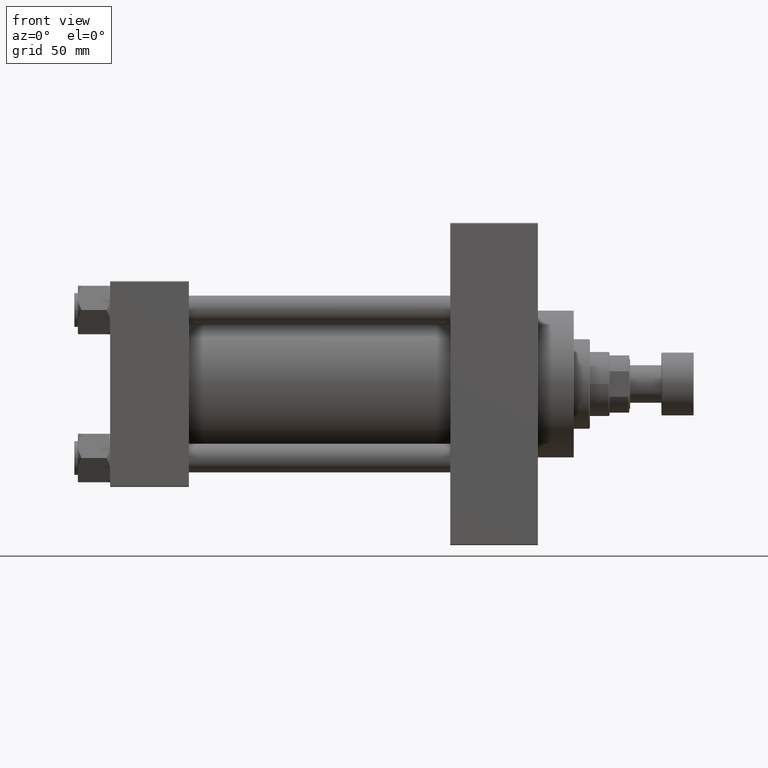
[diagram: clean part render]
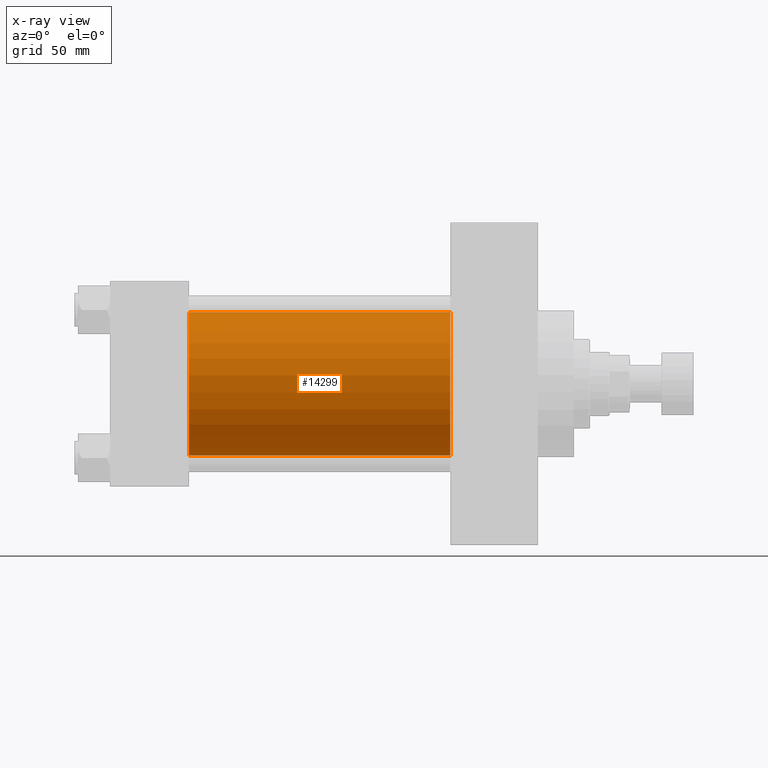
[diagram: x-ray — body ghosted, one internal face saturated and labeled with its STEP entity id]
A machine part, front view, then the same camera in x-ray: the body is ghosted and one INTERNAL B-rep face — a face not visible from any outside direction — is saturated and labeled: STEP entity #14299.
In plain terms, the highlighted cylindrical surface (partial cylindrical patch) has radius 40 mm, axis along (-1, -0, -0).
Its self-contained STEP definition (entity closure, byte-faithful):
#1648 = VERTEX_POINT ( 'NONE', #43539 ) ;
#1731 = VECTOR ( 'NONE', #27690, 1000.000000000000000 ) ;
#1929 = CARTESIAN_POINT ( 'NONE',  ( 44.00000000000000000, -2.602085213965210642E-15, 40.00000000000000000 ) ) ;
#2378 = DIRECTION ( 'NONE',  ( 0.000000000000000000, 0.000000000000000000, -1.000000000000000000 ) ) ;
#3303 = CARTESIAN_POINT ( 'NONE',  ( 190.0000000000000000, -2.602085213965210642E-15, 40.00000000000000000 ) ) ;
#6787 = AXIS2_PLACEMENT_3D ( 'NONE', #32576, #48092, #48344 ) ;
#7384 = ORIENTED_EDGE ( 'NONE', *, *, #15392, .T. ) ;
#9329 = CARTESIAN_POINT ( 'NONE',  ( 190.0000000000000000, 2.296501982624201990E-15, -40.00000000000000000 ) ) ;
#13264 = DIRECTION ( 'NONE',  ( 0.000000000000000000, 0.000000000000000000, 1.000000000000000000 ) ) ;
#13697 = ORIENTED_EDGE ( 'NONE', *, *, #34579, .T. ) ;
#13760 = CARTESIAN_POINT ( 'NONE',  ( 190.0000000000000000, -2.602085213965210642E-15, 0.000000000000000000 ) ) ;
#14299 = ADVANCED_FACE ( 'NONE', ( #40752 ), #36194, .F. ) ;
#15302 = EDGE_LOOP ( 'NONE', ( #7384, #13697, #38030, #24766 ) ) ;
#15392 = EDGE_CURVE ( 'NONE', #1648, #39754, #23055, .T. ) ;
#17072 = EDGE_CURVE ( 'NONE', #31358, #32282, #36036, .T. ) ;
#19834 = AXIS2_PLACEMENT_3D ( 'NONE', #29813, #30298, #2378 ) ;
#20283 = DIRECTION ( 'NONE',  ( -1.000000000000000000, -0.000000000000000000, -0.000000000000000000 ) ) ;
#21803 = CARTESIAN_POINT ( 'NONE',  ( 44.00000000000000000, 2.296501982624201990E-15, -40.00000000000000000 ) ) ;
#23055 = CIRCLE ( 'NONE', #19834, 40.00000000000000000 ) ;
#24766 = ORIENTED_EDGE ( 'NONE', *, *, #38091, .F. ) ;
#27181 = LINE ( 'NONE', #3303, #1731 ) ;
#27690 = DIRECTION ( 'NONE',  ( -1.000000000000000000, -0.000000000000000000, -0.000000000000000000 ) ) ;
#29813 = CARTESIAN_POINT ( 'NONE',  ( 190.0000000000000000, -2.602085213965210642E-15, 0.000000000000000000 ) ) ;
#30298 = DIRECTION ( 'NONE',  ( 1.000000000000000000, 0.000000000000000000, 0.000000000000000000 ) ) ;
#31358 = VERTEX_POINT ( 'NONE', #1929 ) ;
#32282 = VERTEX_POINT ( 'NONE', #21803 ) ;
#32576 = CARTESIAN_POINT ( 'NONE',  ( 44.00000000000000000, -2.602085213965210642E-15, 0.000000000000000000 ) ) ;
#34579 = EDGE_CURVE ( 'NONE', #39754, #32282, #44182, .T. ) ;
#36036 = CIRCLE ( 'NONE', #6787, 40.00000000000000000 ) ;
#36194 = CYLINDRICAL_SURFACE ( 'NONE', #47401, 40.00000000000000000 ) ;
#38030 = ORIENTED_EDGE ( 'NONE', *, *, #17072, .F. ) ;
#38091 = EDGE_CURVE ( 'NONE', #1648, #31358, #27181, .T. ) ;
#39754 = VERTEX_POINT ( 'NONE', #44332 ) ;
#40752 = FACE_OUTER_BOUND ( 'NONE', #15302, .T. ) ;
#42286 = VECTOR ( 'NONE', #20283, 1000.000000000000000 ) ;
#43539 = CARTESIAN_POINT ( 'NONE',  ( 190.0000000000000000, -2.602085213965210642E-15, 40.00000000000000000 ) ) ;
#44077 = DIRECTION ( 'NONE',  ( -1.000000000000000000, -0.000000000000000000, -0.000000000000000000 ) ) ;
#44182 = LINE ( 'NONE', #9329, #42286 ) ;
#44332 = CARTESIAN_POINT ( 'NONE',  ( 190.0000000000000000, 2.296501982624201990E-15, -40.00000000000000000 ) ) ;
#47401 = AXIS2_PLACEMENT_3D ( 'NONE', #13760, #44077, #13264 ) ;
#48092 = DIRECTION ( 'NONE',  ( 1.000000000000000000, 0.000000000000000000, 0.000000000000000000 ) ) ;
#48344 = DIRECTION ( 'NONE',  ( 0.000000000000000000, 0.000000000000000000, -1.000000000000000000 ) ) ;